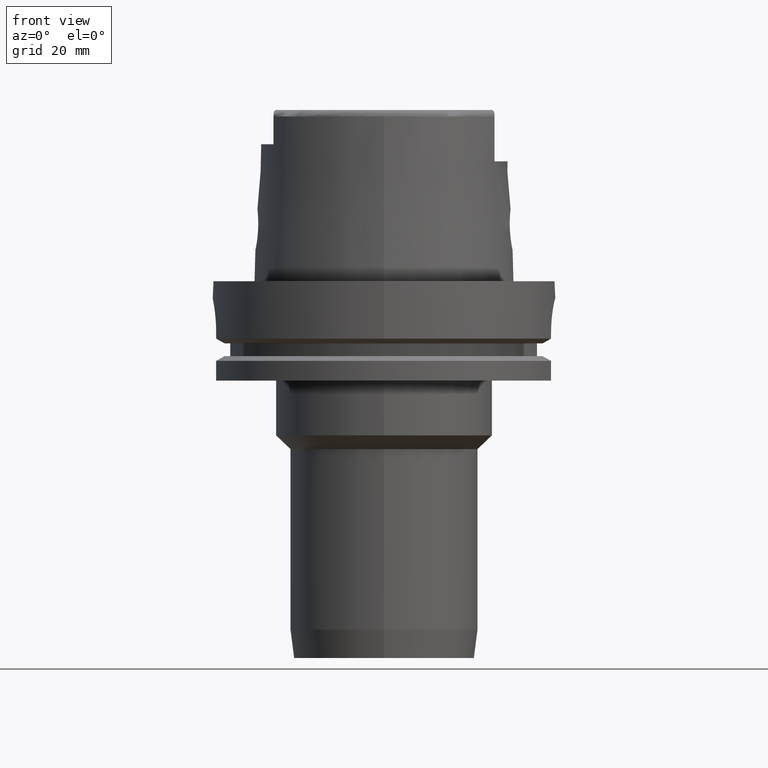
[diagram: clean part render]
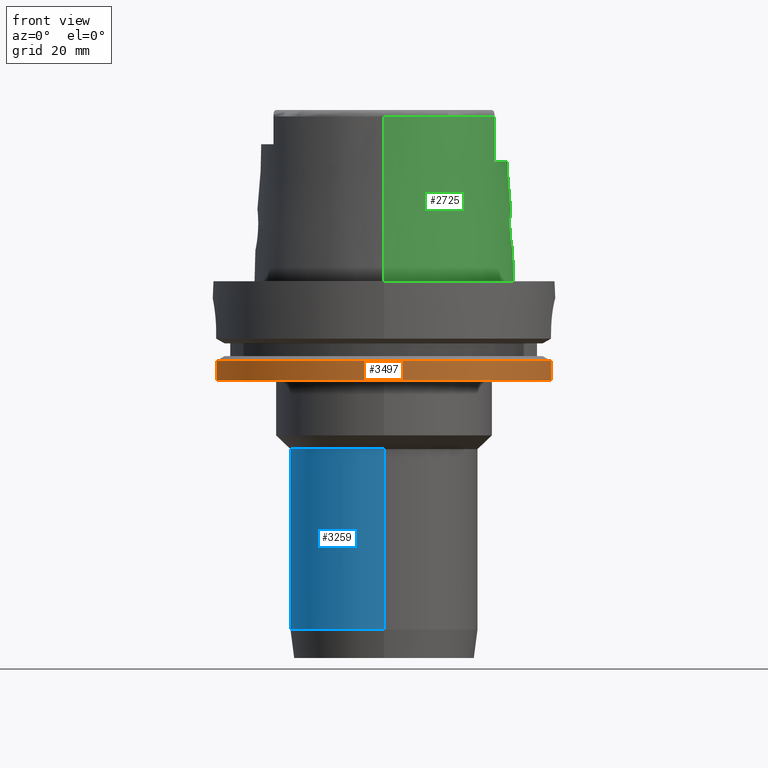
[diagram: same view with three faces highlighted in distinct colors, each labeled with its STEP entity id]
A machine part, front view with three faces highlighted in distinct colors.
Their STEP definitions:

[orange] entity #3497 — the highlighted cylindrical surface (partial cylindrical patch) has radius 50 mm, axis along (0, 0, 1).
#1175=CARTESIAN_POINT('',(0.E0,0.E0,-2.9E1));
#1176=DIRECTION('',(0.E0,0.E0,1.E0));
#1177=DIRECTION('',(-9.797958971133E-1,-2.E-1,0.E0));
#1178=AXIS2_PLACEMENT_3D('',#1175,#1176,#1177);
#1183=CARTESIAN_POINT('',(0.E0,0.E0,-2.9E1));
#1184=DIRECTION('',(0.E0,0.E0,1.E0));
#1185=DIRECTION('',(0.E0,-1.E0,0.E0));
#1186=AXIS2_PLACEMENT_3D('',#1183,#1184,#1185);
#1341=DIRECTION('',(9.140553361785E-14,0.E0,1.E0));
#1342=VECTOR('',#1341,5.752404735809E0);
#1343=CARTESIAN_POINT('',(-4.898979485566E1,-1.E1,-2.9E1));
#1344=LINE('',#1343,#1342);
#1348=DIRECTION('',(8.028864439406E-14,-2.223377844758E-14,-1.E0));
#1349=VECTOR('',#1348,5.752404735809E0);
#1350=CARTESIAN_POINT('',(4.877499359303E1,-1.1E1,-2.324759526419E1));
#1351=LINE('',#1350,#1349);
#1900=CARTESIAN_POINT('',(0.E0,0.E0,-2.324759526419E1));
#1901=DIRECTION('',(0.E0,0.E0,-1.E0));
#1902=DIRECTION('',(9.754998718606E-1,-2.2E-1,0.E0));
#1903=AXIS2_PLACEMENT_3D('',#1900,#1901,#1902);
#1908=CARTESIAN_POINT('',(0.E0,0.E0,-2.324759526419E1));
#1909=DIRECTION('',(0.E0,0.E0,-1.E0));
#1910=DIRECTION('',(0.E0,-1.E0,0.E0));
#1911=AXIS2_PLACEMENT_3D('',#1908,#1909,#1910);
#2358=CARTESIAN_POINT('',(-4.898979485566E1,-1.E1,-2.9E1));
#2359=VERTEX_POINT('',#2358);
#2360=CARTESIAN_POINT('',(-6.821749291191E-14,-5.E1,-2.9E1));
#2361=CARTESIAN_POINT('',(4.877499359303E1,-1.1E1,-2.9E1));
#2362=VERTEX_POINT('',#2360);
#2363=VERTEX_POINT('',#2361);
#2386=CARTESIAN_POINT('',(-4.898979485566E1,-1.E1,-2.324759526419E1));
#2387=VERTEX_POINT('',#2386);
#2388=CARTESIAN_POINT('',(4.877499359303E1,-1.1E1,-2.324759526419E1));
#2389=CARTESIAN_POINT('',(0.E0,-5.E1,-2.324759526419E1));
#2390=VERTEX_POINT('',#2388);
#2391=VERTEX_POINT('',#2389);
#3481=CARTESIAN_POINT('',(0.E0,0.E0,-1.18E2));
#3482=DIRECTION('',(0.E0,0.E0,1.E0));
#3483=DIRECTION('',(0.E0,1.E0,0.E0));
#3484=AXIS2_PLACEMENT_3D('',#3481,#3482,#3483);
#3485=CYLINDRICAL_SURFACE('',#3484,5.E1);
#3487=ORIENTED_EDGE('',*,*,#3486,.T.);
#3489=ORIENTED_EDGE('',*,*,#3488,.F.);
#3491=ORIENTED_EDGE('',*,*,#3490,.F.);
#3492=ORIENTED_EDGE('',*,*,#3461,.T.);
#3493=ORIENTED_EDGE('',*,*,#3348,.F.);
#3494=ORIENTED_EDGE('',*,*,#3346,.F.);
#3495=EDGE_LOOP('',(#3487,#3489,#3491,#3492,#3493,#3494));
#3496=FACE_OUTER_BOUND('',#3495,.F.);
#1179=CIRCLE('',#1178,5.E1);
#1187=CIRCLE('',#1186,5.E1);
#1904=CIRCLE('',#1903,5.E1);
#1912=CIRCLE('',#1911,5.E1);
#3346=EDGE_CURVE('',#2359,#2362,#1179,.T.);
#3348=EDGE_CURVE('',#2362,#2363,#1187,.T.);
#3461=EDGE_CURVE('',#2390,#2363,#1351,.T.);
#3486=EDGE_CURVE('',#2359,#2387,#1344,.T.);
#3488=EDGE_CURVE('',#2391,#2387,#1912,.T.);
#3490=EDGE_CURVE('',#2390,#2391,#1904,.T.);
#3497=ADVANCED_FACE('',(#3496),#3485,.T.);

[blue] entity #3259 — the highlighted cylindrical surface (partial cylindrical patch) has radius 27.5 mm, axis along (0, 0, 1).
#1064=CARTESIAN_POINT('',(0.E0,0.E0,-1.017092343860E2));
#1065=DIRECTION('',(0.E0,0.E0,1.E0));
#1066=DIRECTION('',(0.E0,1.E0,0.E0));
#1067=AXIS2_PLACEMENT_3D('',#1064,#1065,#1066);
#1079=DIRECTION('',(0.E0,2.426476004189E-14,-1.E0));
#1080=VECTOR('',#1079,5.270923438600E1);
#1081=CARTESIAN_POINT('',(0.E0,-2.75E1,-4.9E1));
#1082=LINE('',#1081,#1080);
#1086=DIRECTION('',(0.E0,-2.426476004189E-14,-1.E0));
#1087=VECTOR('',#1086,5.270923438600E1);
#1088=CARTESIAN_POINT('',(0.E0,2.75E1,-4.9E1));
#1089=LINE('',#1088,#1087);
#1131=CARTESIAN_POINT('',(0.E0,0.E0,-4.9E1));
#1132=DIRECTION('',(0.E0,0.E0,-1.E0));
#1133=DIRECTION('',(0.E0,-1.E0,0.E0));
#1134=AXIS2_PLACEMENT_3D('',#1131,#1132,#1133);
#2330=CARTESIAN_POINT('',(0.E0,2.75E1,-1.017092343860E2));
#2331=VERTEX_POINT('',#2330);
#2332=CARTESIAN_POINT('',(0.E0,-2.75E1,-1.017092343860E2));
#2333=VERTEX_POINT('',#2332);
#2334=CARTESIAN_POINT('',(0.E0,2.75E1,-4.9E1));
#2335=VERTEX_POINT('',#2334);
#2336=CARTESIAN_POINT('',(0.E0,-2.75E1,-4.9E1));
#2337=VERTEX_POINT('',#2336);
#3245=CARTESIAN_POINT('',(0.E0,0.E0,-1.18E2));
#3246=DIRECTION('',(0.E0,0.E0,1.E0));
#3247=DIRECTION('',(0.E0,1.E0,0.E0));
#3248=AXIS2_PLACEMENT_3D('',#3245,#3246,#3247);
#3249=CYLINDRICAL_SURFACE('',#3248,2.75E1);
#3251=ORIENTED_EDGE('',*,*,#3250,.F.);
#3253=ORIENTED_EDGE('',*,*,#3252,.F.);
#3255=ORIENTED_EDGE('',*,*,#3254,.T.);
#3256=ORIENTED_EDGE('',*,*,#3238,.F.);
#3257=EDGE_LOOP('',(#3251,#3253,#3255,#3256));
#3258=FACE_OUTER_BOUND('',#3257,.F.);
#1068=CIRCLE('',#1067,2.75E1);
#1135=CIRCLE('',#1134,2.75E1);
#3238=EDGE_CURVE('',#2331,#2333,#1068,.T.);
#3250=EDGE_CURVE('',#2335,#2331,#1089,.T.);
#3252=EDGE_CURVE('',#2337,#2335,#1135,.T.);
#3254=EDGE_CURVE('',#2337,#2333,#1082,.T.);
#3259=ADVANCED_FACE('',(#3258),#3249,.T.);

[green] entity #2725 — the highlighted conical surface has half-angle 2.862 deg.
#268=CARTESIAN_POINT('',(3.225000552017E1,-1.506439825998E1,4.810004194739E1));
#273=CARTESIAN_POINT('',(0.E0,0.E0,4.809987853799E1));
#274=DIRECTION('',(0.E0,0.E0,-1.E0));
#275=DIRECTION('',(9.060280460805E-1,-4.232176505246E-1,0.E0));
#276=AXIS2_PLACEMENT_3D('',#273,#274,#275);
#299=DIRECTION('',(5.154182075151E-5,-4.993927430816E-2,-9.987522546783E-1));
#300=VECTOR('',#299,4.815996991514E1);
#301=CARTESIAN_POINT('',(-2.482252536761E-3,-3.559494263425E1,
4.809987853799E1));
#302=LINE('',#301,#300);
#356=CARTESIAN_POINT('',(3.224999527489E1,1.655287543599E1,3.5E1));
#357=CARTESIAN_POINT('',(3.224999527489E1,1.639226210430E1,3.646677430492E1));
#358=CARTESIAN_POINT('',(3.224999958003E1,1.606837254185E1,3.939292747228E1));
#359=CARTESIAN_POINT('',(3.225000855756E1,1.557203233994E1,4.375938232253E1));
#360=CARTESIAN_POINT('',(3.224998031234E1,1.523513261877E1,4.665592284341E1));
#361=CARTESIAN_POINT('',(3.224998031234E1,1.506460277792E1,4.809931525723E1));
#366=DIRECTION('',(-5.154182075159E-5,4.993927430816E-2,-9.987522546783E-1));
#367=VECTOR('',#366,4.815996991514E1);
#368=CARTESIAN_POINT('',(2.482252536765E-3,3.559494263425E1,4.809987853799E1));
#369=LINE('',#368,#367);
#373=CARTESIAN_POINT('',(3.225000552017E1,-1.506439825998E1,4.810004194739E1));
#374=CARTESIAN_POINT('',(3.225000552017E1,-1.523503290321E1,4.665577799039E1));
#375=CARTESIAN_POINT('',(3.225000026293E1,-1.557219472355E1,4.376011583005E1));
#376=CARTESIAN_POINT('',(3.224999079948E1,-1.606856473685E1,3.939344259315E1));
#377=CARTESIAN_POINT('',(3.225002129259E1,-1.639212166417E1,3.646699412941E1));
#378=CARTESIAN_POINT('',(3.225002129259E1,-1.655276054267E1,3.5E1));
#383=CARTESIAN_POINT('',(3.694998175923E1,-1.503990973345E-13,2.1E1));
#384=CARTESIAN_POINT('',(3.694998175923E1,-4.797802459625E-1,2.1E1));
#385=CARTESIAN_POINT('',(3.693671039676E1,-1.442255700479E0,2.088419789910E1));
#386=CARTESIAN_POINT('',(3.688228870556E1,-2.811045087232E0,2.036825121477E1));
#387=CARTESIAN_POINT('',(3.680969564375E1,-4.022464895301E0,1.953029681800E1));
#388=CARTESIAN_POINT('',(3.674467907194E1,-4.978631049395E0,1.845063897975E1));
#389=CARTESIAN_POINT('',(3.670932444561E1,-5.659312641152E0,1.716248633482E1));
#390=CARTESIAN_POINT('',(3.672366294059E1,-6.010488837805E0,1.575504519638E1));
#391=CARTESIAN_POINT('',(3.679583247405E1,-6.017563505339E0,1.430788701451E1));
#392=CARTESIAN_POINT('',(3.692116509400E1,-5.683679439586E0,1.290170422270E1));
#393=CARTESIAN_POINT('',(3.708601737553E1,-5.012074069587E0,1.159656882053E1));
#394=CARTESIAN_POINT('',(3.726045450308E1,-4.056873430502E0,1.049755868161E1));
#395=CARTESIAN_POINT('',(3.742032924640E1,-2.818768243763E0,9.632672425093E0));
#396=CARTESIAN_POINT('',(3.752613267857E1,-1.431085209601E0,9.112674872613E0));
#397=CARTESIAN_POINT('',(3.755000165825E1,-4.733974155621E-1,9.E0));
#398=CARTESIAN_POINT('',(3.755000165825E1,0.E0,9.E0));
#403=CARTESIAN_POINT('',(3.755000165825E1,0.E0,9.E0));
#404=CARTESIAN_POINT('',(3.755000165825E1,4.745242574385E-1,9.E0));
#405=CARTESIAN_POINT('',(3.752592541407E1,1.428580845193E0,9.113727050999E0));
#406=CARTESIAN_POINT('',(3.742293454489E1,2.788270921025E0,9.619838954985E0));
#407=CARTESIAN_POINT('',(3.726762910757E1,4.008344286117E0,1.045740058335E1));
#408=CARTESIAN_POINT('',(3.709615421451E1,4.963541130064E0,1.152714710368E1));
#409=CARTESIAN_POINT('',(3.692869601247E1,5.658833559572E0,1.283084753336E1));
#410=CARTESIAN_POINT('',(3.679916096210E1,6.013218808079E0,1.425655288674E1));
#411=CARTESIAN_POINT('',(3.672466049034E1,6.015447615448E0,1.571910830014E1));
#412=CARTESIAN_POINT('',(3.670906046467E1,5.671873280281E0,1.712851458099E1));
#413=CARTESIAN_POINT('',(3.674325333292E1,5.000384521063E0,1.841933773584E1));
#414=CARTESIAN_POINT('',(3.680809949245E1,4.046512239054E0,1.950979693094E1));
#415=CARTESIAN_POINT('',(3.688135283473E1,2.830581559668E0,2.035906184266E1));
#416=CARTESIAN_POINT('',(3.693655762265E1,1.451293892347E0,2.088292280471E1));
#417=CARTESIAN_POINT('',(3.694998175923E1,4.826340005467E-1,2.1E1));
#418=CARTESIAN_POINT('',(3.694998175923E1,-1.503990973345E-13,2.1E1));
#453=CARTESIAN_POINT('',(0.E0,0.E0,3.5E1));
#454=DIRECTION('',(0.E0,0.E0,-1.E0));
#455=DIRECTION('',(8.896561898443E-1,4.566309931135E-1,0.E0));
#456=AXIS2_PLACEMENT_3D('',#453,#454,#455);
#1932=CARTESIAN_POINT('',(0.E0,0.E0,1.023181539495E-12));
#1933=DIRECTION('',(0.E0,0.E0,1.E0));
#1934=DIRECTION('',(0.E0,-1.E0,0.E0));
#1935=AXIS2_PLACEMENT_3D('',#1932,#1933,#1934);
#2144=CARTESIAN_POINT('',(0.E0,0.E0,4.809987853799E1));
#2145=DIRECTION('',(0.E0,0.E0,-1.E0));
#2146=DIRECTION('',(0.E0,1.E0,0.E0));
#2147=AXIS2_PLACEMENT_3D('',#2144,#2145,#2146);
#2230=CARTESIAN_POINT('',(0.E0,3.559494289391E1,4.809987853799E1));
#2231=VERTEX_POINT('',#2230);
#2232=CARTESIAN_POINT('',(3.224994093704E1,1.506456999646E1,4.809987853799E1));
#2233=VERTEX_POINT('',#2232);
#2237=VERTEX_POINT('',#268);
#2238=CARTESIAN_POINT('',(1.065814103640E-14,-3.559494289391E1,
4.809987853799E1));
#2239=VERTEX_POINT('',#2238);
#2240=CARTESIAN_POINT('',(0.E0,-3.800001658252E1,6.110667527537E-13));
#2241=VERTEX_POINT('',#2240);
#2242=CARTESIAN_POINT('',(0.E0,3.800001658252E1,1.023181539495E-12));
#2243=VERTEX_POINT('',#2242);
#2246=CARTESIAN_POINT('',(3.225E1,1.655285457013E1,3.5E1));
#2247=CARTESIAN_POINT('',(3.225E1,-1.655285457013E1,3.5E1));
#2248=VERTEX_POINT('',#2246);
#2249=VERTEX_POINT('',#2247);
#2250=VERTEX_POINT('',#383);
#2251=VERTEX_POINT('',#398);
#2699=CARTESIAN_POINT('',(0.E0,0.E0,2.404993926900E1));
#2700=DIRECTION('',(0.E0,0.E0,-1.E0));
#2701=DIRECTION('',(0.E0,-1.E0,0.E0));
#2702=AXIS2_PLACEMENT_3D('',#2699,#2700,#2701);
#2703=CONICAL_SURFACE('',#2702,3.679747973821E1,2.8625E0);
#2705=ORIENTED_EDGE('',*,*,#2704,.F.);
#2707=ORIENTED_EDGE('',*,*,#2706,.T.);
#2709=ORIENTED_EDGE('',*,*,#2708,.F.);
#2710=ORIENTED_EDGE('',*,*,#2684,.T.);
#2712=ORIENTED_EDGE('',*,*,#2711,.F.);
#2713=ORIENTED_EDGE('',*,*,#2680,.F.);
#2714=ORIENTED_EDGE('',*,*,#2652,.F.);
#2716=ORIENTED_EDGE('',*,*,#2715,.T.);
#2717=EDGE_LOOP('',(#2705,#2707,#2709,#2710,#2712,#2713,#2714,#2716));
#2718=FACE_OUTER_BOUND('',#2717,.F.);
#2720=ORIENTED_EDGE('',*,*,#2719,.T.);
#2722=ORIENTED_EDGE('',*,*,#2721,.T.);
#2723=EDGE_LOOP('',(#2720,#2722));
#2724=FACE_BOUND('',#2723,.F.);
#277=CIRCLE('',#276,3.559494289391E1);
#362=B_SPLINE_CURVE_WITH_KNOTS('',3,(#356,#357,#358,#359,#360,#361),
.UNSPECIFIED.,.F.,.F.,(4,1,1,4),(0.E0,3.333333333333E-1,6.666666666667E-1,1.E0),
.UNSPECIFIED.);
#379=B_SPLINE_CURVE_WITH_KNOTS('',3,(#373,#374,#375,#376,#377,#378),
.UNSPECIFIED.,.F.,.F.,(4,1,1,4),(0.E0,3.333333333333E-1,6.666666666667E-1,1.E0),
.UNSPECIFIED.);
#399=B_SPLINE_CURVE_WITH_KNOTS('',3,(#383,#384,#385,#386,#387,#388,#389,#390,
#391,#392,#393,#394,#395,#396,#397,#398),.UNSPECIFIED.,.F.,.F.,(4,1,1,1,1,1,1,1,
1,1,1,1,1,4),(0.E0,7.692307692308E-2,1.538461538462E-1,2.307692307692E-1,
3.076923076923E-1,3.846153846154E-1,4.615384615385E-1,5.384615384615E-1,
6.153846153846E-1,6.923076923077E-1,7.692307692308E-1,8.461538461538E-1,
9.230769230769E-1,1.E0),.UNSPECIFIED.);
#419=B_SPLINE_CURVE_WITH_KNOTS('',3,(#403,#404,#405,#406,#407,#408,#409,#410,
#411,#412,#413,#414,#415,#416,#417,#418),.UNSPECIFIED.,.F.,.F.,(4,1,1,1,1,1,1,1,
1,1,1,1,1,4),(0.E0,7.692307692308E-2,1.538461538462E-1,2.307692307692E-1,
3.076923076923E-1,3.846153846154E-1,4.615384615385E-1,5.384615384615E-1,
6.153846153846E-1,6.923076923077E-1,7.692307692308E-1,8.461538461538E-1,
9.230769230769E-1,1.E0),.UNSPECIFIED.);
#457=CIRCLE('',#456,3.624995854370E1);
#1936=CIRCLE('',#1935,3.800001658252E1);
#2148=CIRCLE('',#2147,3.559494289391E1);
#2652=EDGE_CURVE('',#2237,#2239,#277,.T.);
#2680=EDGE_CURVE('',#2239,#2241,#302,.T.);
#2684=EDGE_CURVE('',#2231,#2243,#369,.T.);
#2704=EDGE_CURVE('',#2248,#2249,#457,.T.);
#2706=EDGE_CURVE('',#2248,#2233,#362,.T.);
#2708=EDGE_CURVE('',#2231,#2233,#2148,.T.);
#2711=EDGE_CURVE('',#2241,#2243,#1936,.T.);
#2715=EDGE_CURVE('',#2237,#2249,#379,.T.);
#2719=EDGE_CURVE('',#2250,#2251,#399,.T.);
#2721=EDGE_CURVE('',#2251,#2250,#419,.T.);
#2725=ADVANCED_FACE('',(#2718,#2724),#2703,.T.);